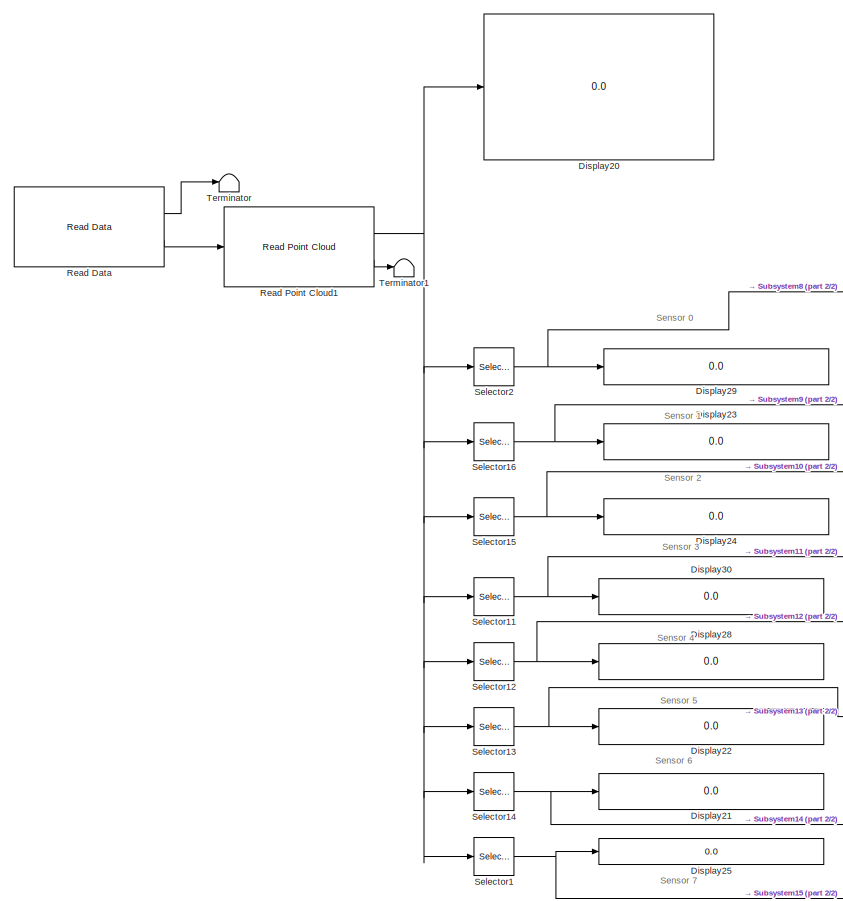
[diagram: root canvas - part 1/2, left side, full height]
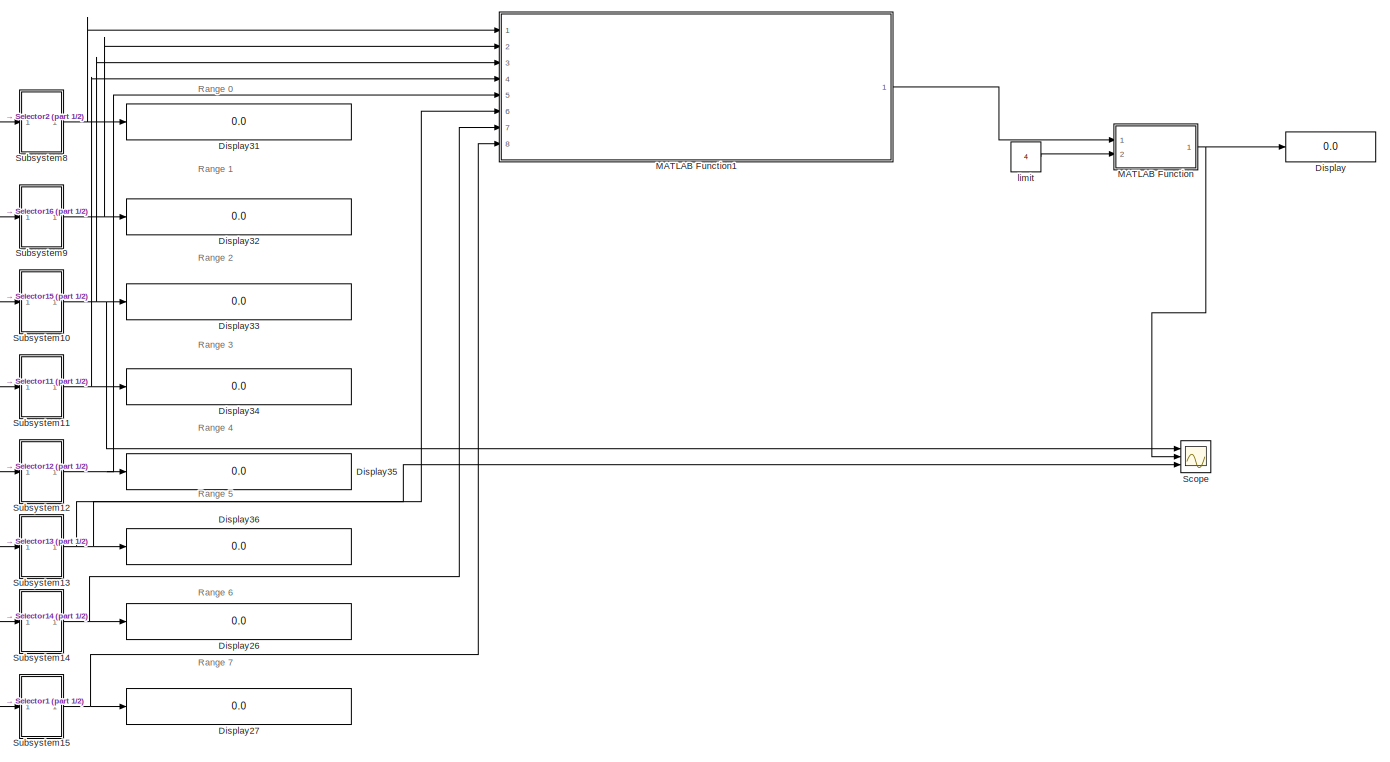
[diagram: root canvas - part 2/2, right side, full height]
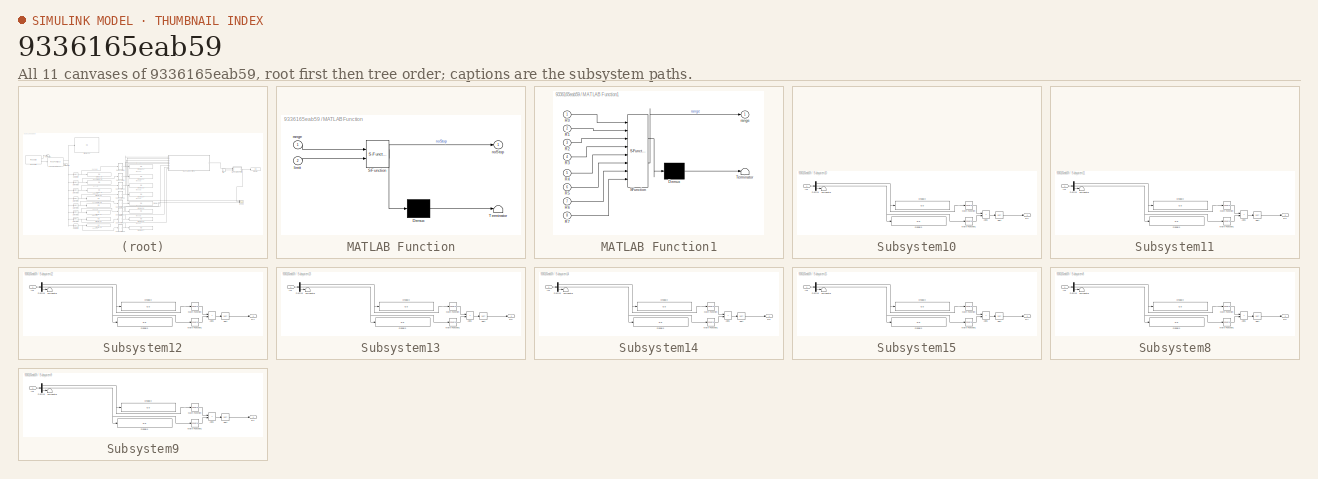
[diagram: thumbnail index - all 11 canvases of the model, root first then tree order]
MODEL slx_9336165eab59
KIND model
CONFIG AbsTol = auto
CONFIG EnableMultiTasking = off
CONFIG FixedStep = auto
CONFIG MaxStep = auto
CONFIG MinStep = auto
CONFIG RelTol = 1e-3
CONFIG SampleTimeConstraint = Unconstrained
CONFIG SolverName = FixedStepAuto
CONFIG StartTime = 0.0
CONFIG StopTime = inf
WORKSPACE source: mxarray member
WORKSPACE Logfile_Data_Object: robotics.ros.BagSelection (value not decoded)
WORKSPACE Logfile_Path = '<userpath><path>'
WORKSPACE Logfile_Playback_Duration = nan
WORKSPACE Logfile_Playback_Offset = nan
WORKSPACE SL_ROS_VariableLengthArrays_MaxSizes: object (value not decoded)
BLOCK [Display] Display
  Decimation = 1
  Ports = [1]
BLOCK [Display] Display20
  Decimation = 1
  Ports = [1]
BLOCK [Display] Display21
  Decimation = 1
  Ports = [1]
BLOCK [Display] Display22
  Decimation = 1
  Ports = [1]
BLOCK [Display] Display23
  Decimation = 1
  Ports = [1]
BLOCK [Display] Display24
  Decimation = 1
  Ports = [1]
BLOCK [Display] Display25
  Decimation = 1
  Ports = [1]
BLOCK [Display] Display26
  Decimation = 1
  Ports = [1]
BLOCK [Display] Display27
  Decimation = 1
  Ports = [1]
BLOCK [Display] Display28
  Decimation = 1
  Ports = [1]
BLOCK [Display] Display29
  Decimation = 1
  Ports = [1]
BLOCK [Display] Display30
  Decimation = 1
  Ports = [1]
BLOCK [Display] Display31
  Decimation = 1
  Ports = [1]
BLOCK [Display] Display32
  Decimation = 1
  Ports = [1]
BLOCK [Display] Display33
  Decimation = 1
  Ports = [1]
BLOCK [Display] Display34
  Decimation = 1
  Ports = [1]
BLOCK [Display] Display35
  Decimation = 1
  Ports = [1]
BLOCK [Display] Display36
  Decimation = 1
  Ports = [1]
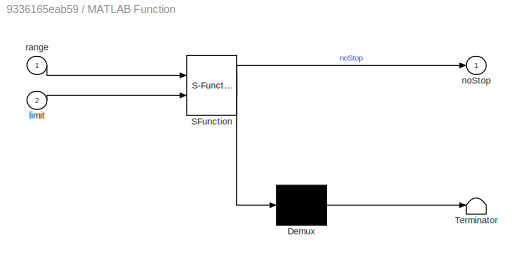
BLOCK [SubSystem] MATLAB Function
  ErrorFcn = Stateflow.Translate.translate
  PermitHierarchicalResolution = ExplicitOnly
  Ports = [2, 1]
  RequestExecContextInheritance = off
  SFBlockType = MATLAB Function
  TreatAsAtomicUnit = on
BLOCK [Demux] MATLAB Function/ Demux 
  Outputs = 1
  Ports = [1, 1]
BLOCK [S-Function] MATLAB Function/ SFunction 
  EnableBusSupport = on
  FunctionName = sf_sfun
  PortCounts = [2 2]
  Ports = [2, 2]
  SFcnIsStateOwnerBlock = off
  SFunctionDeploymentMode = off
  Tag = Stateflow S-Function 2
BLOCK [Terminator] MATLAB Function/ Terminator 
BLOCK [Inport] MATLAB Function/limit
  Port = 2
BLOCK [Outport] MATLAB Function/noStop
BLOCK [Inport] MATLAB Function/range
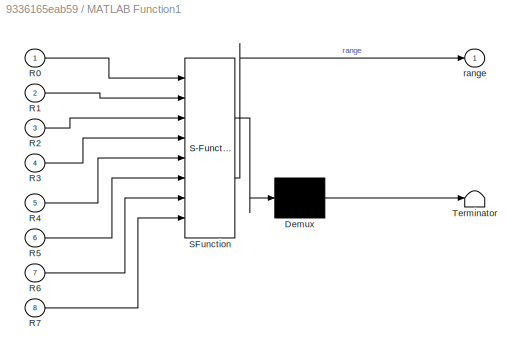
BLOCK [SubSystem] MATLAB Function1
  ErrorFcn = Stateflow.Translate.translate
  PermitHierarchicalResolution = ExplicitOnly
  Ports = [8, 1]
  RequestExecContextInheritance = off
  SFBlockType = MATLAB Function
  TreatAsAtomicUnit = on
BLOCK [Demux] MATLAB Function1/ Demux 
  Outputs = 1
  Ports = [1, 1]
BLOCK [S-Function] MATLAB Function1/ SFunction 
  EnableBusSupport = on
  FunctionName = sf_sfun
  PortCounts = [8 2]
  Ports = [8, 2]
  SFcnIsStateOwnerBlock = off
  SFunctionDeploymentMode = off
  Tag = Stateflow S-Function 1
BLOCK [Terminator] MATLAB Function1/ Terminator 
BLOCK [Inport] MATLAB Function1/R0
BLOCK [Inport] MATLAB Function1/R1
  Port = 2
BLOCK [Inport] MATLAB Function1/R2
  Port = 3
BLOCK [Inport] MATLAB Function1/R3
  Port = 4
BLOCK [Inport] MATLAB Function1/R4
  Port = 5
BLOCK [Inport] MATLAB Function1/R5
  Port = 6
BLOCK [Inport] MATLAB Function1/R6
  Port = 7
BLOCK [Inport] MATLAB Function1/R7
  Port = 8
BLOCK [Outport] MATLAB Function1/range
BLOCK [Reference] Read Data  REF=robotlib/Read Data
  Ports = [0, 2]
  SourceBlock = robotlib/Read Data
  SourceProductBaseCode = RR
  SourceType = Read Data from Logfile
BLOCK [Reference] Read Point Cloud1  REF=robotlib/Read Point Cloud
  Ports = [1, 2]
  SourceBlock = robotlib/Read Point Cloud
  SourceProductBaseCode = RR
  SourceType = ros.slros.internal.block.ReadPointCloud
BLOCK [Scope] Scope
  Floating = off
  NumInputPorts = 3
  Ports = [3]
  ScopeSpecificationString = Simulink.scopes.TimeScopeBlockCfg('CurrentConfiguration', extmgr.ConfigurationSet(extmgr.Configuration('Core','General UI',true),extmgr.Configuration('Core','Source UI',true),extmgr.Configuration('Sources','WiredSimulink',true),extmgr.Configuration('Visuals','Time Domain',true,'SerializedDisplays',{struct('MinYLimReal','-0.6459','MaxYLimReal','0.31695','YLabelReal','','MinYLimMag','0.00000','MaxYL...<+2805ch>
BLOCK [Selector] Selector1
  IndexOptions = Starting index (dialog),Starting index (dialog)
  Indices = 8,1
  InputPortWidth = 6
  NumberOfDimensions = 2
  OutputSizes = 1,3
  Ports = [1, 1]
BLOCK [Selector] Selector11
  IndexOptions = Starting index (dialog),Starting index (dialog)
  Indices = 4,1
  InputPortWidth = 6
  NumberOfDimensions = 2
  OutputSizes = 1,3
  Ports = [1, 1]
BLOCK [Selector] Selector12
  IndexOptions = Starting index (dialog),Starting index (dialog)
  Indices = 5,1
  InputPortWidth = 6
  NumberOfDimensions = 2
  OutputSizes = 1,3
  Ports = [1, 1]
BLOCK [Selector] Selector13
  IndexOptions = Starting index (dialog),Starting index (dialog)
  Indices = 6,1
  InputPortWidth = 6
  NumberOfDimensions = 2
  OutputSizes = 1,3
  Ports = [1, 1]
BLOCK [Selector] Selector14
  IndexOptions = Starting index (dialog),Starting index (dialog)
  Indices = 7,1
  InputPortWidth = 6
  NumberOfDimensions = 2
  OutputSizes = 1,3
  Ports = [1, 1]
BLOCK [Selector] Selector15
  IndexOptions = Starting index (dialog),Starting index (dialog)
  Indices = 3,1
  InputPortWidth = 6
  NumberOfDimensions = 2
  OutputSizes = 1,3
  Ports = [1, 1]
BLOCK [Selector] Selector16
  IndexOptions = Starting index (dialog),Starting index (dialog)
  Indices = 2,1
  InputPortWidth = 6
  NumberOfDimensions = 2
  OutputSizes = 1,3
  Ports = [1, 1]
BLOCK [Selector] Selector2
  IndexOptions = Starting index (dialog),Starting index (dialog)
  Indices = 1,1
  InputPortWidth = 6
  NumberOfDimensions = 2
  OutputSizes = 1,3
  Ports = [1, 1]
BLOCK [SubSystem] Subsystem10
  Ports = [1, 1]
  RequestExecContextInheritance = off
BLOCK [Sum] Subsystem10/Add1
  IconShape = rectangular
  Ports = [2, 1]
BLOCK [Demux] Subsystem10/Demux
  Outputs = 3
  Ports = [1, 3]
BLOCK [Display] Subsystem10/Display2
  Decimation = 1
  Ports = [1]
BLOCK [Display] Subsystem10/Display3
  Decimation = 1
  Ports = [1]
BLOCK [Inport] Subsystem10/In1
BLOCK [Math] Subsystem10/Math Function
  Operator = square
  Ports = [1, 1]
BLOCK [Math] Subsystem10/Math Function1
  Operator = square
  Ports = [1, 1]
BLOCK [Outport] Subsystem10/R2
BLOCK [Sqrt] Subsystem10/Sqrt
BLOCK [Terminator] Subsystem10/Terminator
BLOCK [SubSystem] Subsystem11
  Ports = [1, 1]
  RequestExecContextInheritance = off
BLOCK [Sum] Subsystem11/Add1
  IconShape = rectangular
  Ports = [2, 1]
BLOCK [Demux] Subsystem11/Demux
  Outputs = 3
  Ports = [1, 3]
BLOCK [Display] Subsystem11/Display2
  Decimation = 1
  Ports = [1]
BLOCK [Display] Subsystem11/Display3
  Decimation = 1
  Ports = [1]
BLOCK [Inport] Subsystem11/In1
BLOCK [Math] Subsystem11/Math Function
  Operator = square
  Ports = [1, 1]
BLOCK [Math] Subsystem11/Math Function1
  Operator = square
  Ports = [1, 1]
BLOCK [Outport] Subsystem11/R3
BLOCK [Sqrt] Subsystem11/Sqrt
BLOCK [Terminator] Subsystem11/Terminator
BLOCK [SubSystem] Subsystem12
  Ports = [1, 1]
  RequestExecContextInheritance = off
BLOCK [Sum] Subsystem12/Add1
  IconShape = rectangular
  Ports = [2, 1]
BLOCK [Demux] Subsystem12/Demux
  Outputs = 3
  Ports = [1, 3]
BLOCK [Display] Subsystem12/Display2
  Decimation = 1
  Ports = [1]
BLOCK [Display] Subsystem12/Display3
  Decimation = 1
  Ports = [1]
BLOCK [Inport] Subsystem12/In1
BLOCK [Math] Subsystem12/Math Function
  Operator = square
  Ports = [1, 1]
BLOCK [Math] Subsystem12/Math Function1
  Operator = square
  Ports = [1, 1]
BLOCK [Outport] Subsystem12/R4
BLOCK [Sqrt] Subsystem12/Sqrt
BLOCK [Terminator] Subsystem12/Terminator
BLOCK [SubSystem] Subsystem13
  Ports = [1, 1]
  RequestExecContextInheritance = off
BLOCK [Sum] Subsystem13/Add1
  IconShape = rectangular
  Ports = [2, 1]
BLOCK [Demux] Subsystem13/Demux
  Outputs = 3
  Ports = [1, 3]
BLOCK [Display] Subsystem13/Display2
  Decimation = 1
  Ports = [1]
BLOCK [Display] Subsystem13/Display3
  Decimation = 1
  Ports = [1]
BLOCK [Inport] Subsystem13/In1
BLOCK [Math] Subsystem13/Math Function
  Operator = square
  Ports = [1, 1]
BLOCK [Math] Subsystem13/Math Function1
  Operator = square
  Ports = [1, 1]
BLOCK [Outport] Subsystem13/R5
BLOCK [Sqrt] Subsystem13/Sqrt
BLOCK [Terminator] Subsystem13/Terminator
BLOCK [SubSystem] Subsystem14
  Ports = [1, 1]
  RequestExecContextInheritance = off
BLOCK [Sum] Subsystem14/Add1
  IconShape = rectangular
  Ports = [2, 1]
BLOCK [Demux] Subsystem14/Demux
  Outputs = 3
  Ports = [1, 3]
BLOCK [Display] Subsystem14/Display2
  Decimation = 1
  Ports = [1]
BLOCK [Display] Subsystem14/Display3
  Decimation = 1
  Ports = [1]
BLOCK [Inport] Subsystem14/In1
BLOCK [Math] Subsystem14/Math Function
  Operator = square
  Ports = [1, 1]
BLOCK [Math] Subsystem14/Math Function1
  Operator = square
  Ports = [1, 1]
BLOCK [Outport] Subsystem14/R6
BLOCK [Sqrt] Subsystem14/Sqrt
BLOCK [Terminator] Subsystem14/Terminator
BLOCK [SubSystem] Subsystem15
  Ports = [1, 1]
  RequestExecContextInheritance = off
BLOCK [Sum] Subsystem15/Add1
  IconShape = rectangular
  Ports = [2, 1]
BLOCK [Demux] Subsystem15/Demux
  Outputs = 3
  Ports = [1, 3]
BLOCK [Display] Subsystem15/Display2
  Decimation = 1
  Ports = [1]
BLOCK [Display] Subsystem15/Display3
  Decimation = 1
  Ports = [1]
BLOCK [Inport] Subsystem15/In1
BLOCK [Math] Subsystem15/Math Function
  Operator = square
  Ports = [1, 1]
BLOCK [Math] Subsystem15/Math Function1
  Operator = square
  Ports = [1, 1]
BLOCK [Outport] Subsystem15/R7
BLOCK [Sqrt] Subsystem15/Sqrt
BLOCK [Terminator] Subsystem15/Terminator
BLOCK [SubSystem] Subsystem8
  Ports = [1, 1]
  RequestExecContextInheritance = off
BLOCK [Sum] Subsystem8/Add1
  IconShape = rectangular
  Ports = [2, 1]
BLOCK [Demux] Subsystem8/Demux
  Outputs = 3
  Ports = [1, 3]
BLOCK [Display] Subsystem8/Display2
  Decimation = 1
  Ports = [1]
BLOCK [Display] Subsystem8/Display3
  Decimation = 1
  Ports = [1]
BLOCK [Inport] Subsystem8/In1
BLOCK [Math] Subsystem8/Math Function
  Operator = square
  Ports = [1, 1]
BLOCK [Math] Subsystem8/Math Function1
  Operator = square
  Ports = [1, 1]
BLOCK [Outport] Subsystem8/R0
BLOCK [Sqrt] Subsystem8/Sqrt
BLOCK [Terminator] Subsystem8/Terminator
BLOCK [SubSystem] Subsystem9
  Ports = [1, 1]
  RequestExecContextInheritance = off
BLOCK [Sum] Subsystem9/Add1
  IconShape = rectangular
  Ports = [2, 1]
BLOCK [Demux] Subsystem9/Demux
  Outputs = 3
  Ports = [1, 3]
BLOCK [Display] Subsystem9/Display2
  Decimation = 1
  Ports = [1]
BLOCK [Display] Subsystem9/Display3
  Decimation = 1
  Ports = [1]
BLOCK [Inport] Subsystem9/In1
BLOCK [Math] Subsystem9/Math Function
  Operator = square
  Ports = [1, 1]
BLOCK [Math] Subsystem9/Math Function1
  Operator = square
  Ports = [1, 1]
BLOCK [Outport] Subsystem9/R1
BLOCK [Sqrt] Subsystem9/Sqrt
BLOCK [Terminator] Subsystem9/Terminator
BLOCK [Terminator] Terminator
BLOCK [Terminator] Terminator1
BLOCK [Constant] limit
  Value = 4
ANNOTATION (root): Range 0
ANNOTATION (root): Range 1
ANNOTATION (root): Range 2
ANNOTATION (root): Range 3
ANNOTATION (root): Range 4
ANNOTATION (root): Range 5
ANNOTATION (root): Range 6
ANNOTATION (root): Range 7
ANNOTATION (root): Sensor 0
ANNOTATION (root): Sensor 1
ANNOTATION (root): Sensor 2
ANNOTATION (root): Sensor 3
ANNOTATION (root): Sensor 4
ANNOTATION (root): Sensor 5
ANNOTATION (root): Sensor 6
ANNOTATION (root): Sensor 7
LINE MATLAB Function1:1 -> MATLAB Function:1
NET MATLAB Function:1 -> Display:1, Scope:2
LINE Read Data:1 -> Terminator:1
LINE Read Data:2 -> Read Point Cloud1:1
NET Read Point Cloud1:1 -> Display20:1, Selector11:1, Selector12:1, Selector13:1, Selector14:1, Selector15:1, Selector16:1, Selector1:1, Selector2:1
LINE Read Point Cloud1:2 -> Terminator1:1
NET Selector11:1 -> Display30:1, Subsystem11:1
NET Selector12:1 -> Display28:1, Subsystem12:1
NET Selector13:1 -> Display22:1, Subsystem13:1
NET Selector14:1 -> Display21:1, Subsystem14:1
NET Selector15:1 -> Display24:1, Subsystem10:1
NET Selector16:1 -> Display23:1, Subsystem9:1
NET Selector1:1 -> Display25:1, Subsystem15:1
NET Selector2:1 -> Display29:1, Subsystem8:1
LINE Subsystem10/Add1:1 -> Subsystem10/Sqrt:1
NET Subsystem10/Demux:1 -> Subsystem10/Display2:1, Subsystem10/Math Function:1
NET Subsystem10/Demux:2 -> Subsystem10/Display3:1, Subsystem10/Math Function1:1
LINE Subsystem10/Demux:3 -> Subsystem10/Terminator:1
LINE Subsystem10/In1:1 -> Subsystem10/Demux:1
LINE Subsystem10/Math Function1:1 -> Subsystem10/Add1:2
LINE Subsystem10/Math Function:1 -> Subsystem10/Add1:1
LINE Subsystem10/Sqrt:1 -> Subsystem10/R2:1
NET Subsystem10:1 -> Display33:1, MATLAB Function1:3, Scope:1
LINE Subsystem11/Add1:1 -> Subsystem11/Sqrt:1
NET Subsystem11/Demux:1 -> Subsystem11/Display2:1, Subsystem11/Math Function:1
NET Subsystem11/Demux:2 -> Subsystem11/Display3:1, Subsystem11/Math Function1:1
LINE Subsystem11/Demux:3 -> Subsystem11/Terminator:1
LINE Subsystem11/In1:1 -> Subsystem11/Demux:1
LINE Subsystem11/Math Function1:1 -> Subsystem11/Add1:2
LINE Subsystem11/Math Function:1 -> Subsystem11/Add1:1
LINE Subsystem11/Sqrt:1 -> Subsystem11/R3:1
NET Subsystem11:1 -> Display34:1, MATLAB Function1:4
LINE Subsystem12/Add1:1 -> Subsystem12/Sqrt:1
NET Subsystem12/Demux:1 -> Subsystem12/Display2:1, Subsystem12/Math Function:1
NET Subsystem12/Demux:2 -> Subsystem12/Display3:1, Subsystem12/Math Function1:1
LINE Subsystem12/Demux:3 -> Subsystem12/Terminator:1
LINE Subsystem12/In1:1 -> Subsystem12/Demux:1
LINE Subsystem12/Math Function1:1 -> Subsystem12/Add1:2
LINE Subsystem12/Math Function:1 -> Subsystem12/Add1:1
LINE Subsystem12/Sqrt:1 -> Subsystem12/R4:1
NET Subsystem12:1 -> Display35:1, MATLAB Function1:5
LINE Subsystem13/Add1:1 -> Subsystem13/Sqrt:1
NET Subsystem13/Demux:1 -> Subsystem13/Display2:1, Subsystem13/Math Function:1
NET Subsystem13/Demux:2 -> Subsystem13/Display3:1, Subsystem13/Math Function1:1
LINE Subsystem13/Demux:3 -> Subsystem13/Terminator:1
LINE Subsystem13/In1:1 -> Subsystem13/Demux:1
LINE Subsystem13/Math Function1:1 -> Subsystem13/Add1:2
LINE Subsystem13/Math Function:1 -> Subsystem13/Add1:1
LINE Subsystem13/Sqrt:1 -> Subsystem13/R5:1
NET Subsystem13:1 -> Display36:1, MATLAB Function1:6, Scope:3
LINE Subsystem14/Add1:1 -> Subsystem14/Sqrt:1
NET Subsystem14/Demux:1 -> Subsystem14/Display2:1, Subsystem14/Math Function:1
NET Subsystem14/Demux:2 -> Subsystem14/Display3:1, Subsystem14/Math Function1:1
LINE Subsystem14/Demux:3 -> Subsystem14/Terminator:1
LINE Subsystem14/In1:1 -> Subsystem14/Demux:1
LINE Subsystem14/Math Function1:1 -> Subsystem14/Add1:2
LINE Subsystem14/Math Function:1 -> Subsystem14/Add1:1
LINE Subsystem14/Sqrt:1 -> Subsystem14/R6:1
NET Subsystem14:1 -> Display26:1, MATLAB Function1:7
LINE Subsystem15/Add1:1 -> Subsystem15/Sqrt:1
NET Subsystem15/Demux:1 -> Subsystem15/Display2:1, Subsystem15/Math Function:1
NET Subsystem15/Demux:2 -> Subsystem15/Display3:1, Subsystem15/Math Function1:1
LINE Subsystem15/Demux:3 -> Subsystem15/Terminator:1
LINE Subsystem15/In1:1 -> Subsystem15/Demux:1
LINE Subsystem15/Math Function1:1 -> Subsystem15/Add1:2
LINE Subsystem15/Math Function:1 -> Subsystem15/Add1:1
LINE Subsystem15/Sqrt:1 -> Subsystem15/R7:1
NET Subsystem15:1 -> Display27:1, MATLAB Function1:8
LINE Subsystem8/Add1:1 -> Subsystem8/Sqrt:1
NET Subsystem8/Demux:1 -> Subsystem8/Display2:1, Subsystem8/Math Function:1
NET Subsystem8/Demux:2 -> Subsystem8/Display3:1, Subsystem8/Math Function1:1
LINE Subsystem8/Demux:3 -> Subsystem8/Terminator:1
LINE Subsystem8/In1:1 -> Subsystem8/Demux:1
LINE Subsystem8/Math Function1:1 -> Subsystem8/Add1:2
LINE Subsystem8/Math Function:1 -> Subsystem8/Add1:1
LINE Subsystem8/Sqrt:1 -> Subsystem8/R0:1
NET Subsystem8:1 -> Display31:1, MATLAB Function1:1
LINE Subsystem9/Add1:1 -> Subsystem9/Sqrt:1
NET Subsystem9/Demux:1 -> Subsystem9/Display2:1, Subsystem9/Math Function:1
NET Subsystem9/Demux:2 -> Subsystem9/Display3:1, Subsystem9/Math Function1:1
LINE Subsystem9/Demux:3 -> Subsystem9/Terminator:1
LINE Subsystem9/In1:1 -> Subsystem9/Demux:1
LINE Subsystem9/Math Function1:1 -> Subsystem9/Add1:2
LINE Subsystem9/Math Function:1 -> Subsystem9/Add1:1
LINE Subsystem9/Sqrt:1 -> Subsystem9/R1:1
NET Subsystem9:1 -> Display32:1, MATLAB Function1:2
LINE limit:1 -> MATLAB Function:2
note: NET lines group one-source signal fan-out (src -> all destinations, sorted); 1:1 wires keep LINE
CHART MATLAB Function1 states=1 transitions=1
  STATE_LABEL 'eML_blk_kernel()'
  STATE_LABEL 'SCRIPT:\nfunction range = sonarRanges(R0,R1,R2,R3,R4,R5,R6,R7)\nrange = [R0 R1 R2 R3 R4 R5 R6 R7];\nend\n'
CHART MATLAB Function states=1 transitions=1
  STATE_LABEL 'eML_blk_kernel()'
  STATE_LABEL 'SCRIPT:\n% \n% function [kv,kw] = stopRobot(R0,R7)\n% kv=nan;% for the case if the both conditions are false\n% kw=nan;\n% limit=0.8;% Limit for obstacle\n% t=0;\n% while t=<32\n%     k=(R0<limit)||(R7<limit);\n%         if k==false  \n%             kv=1;\n%             kw=1;\n%         else \n%             kv=0;\n%             kw=0;\n%         \n%         end\n%         t=t+1;\n% end\n% \n\n\nfunction noStop = stopRob...<+170ch>'
CHART  states=0 transitions=0
CHART  states=0 transitions=0
